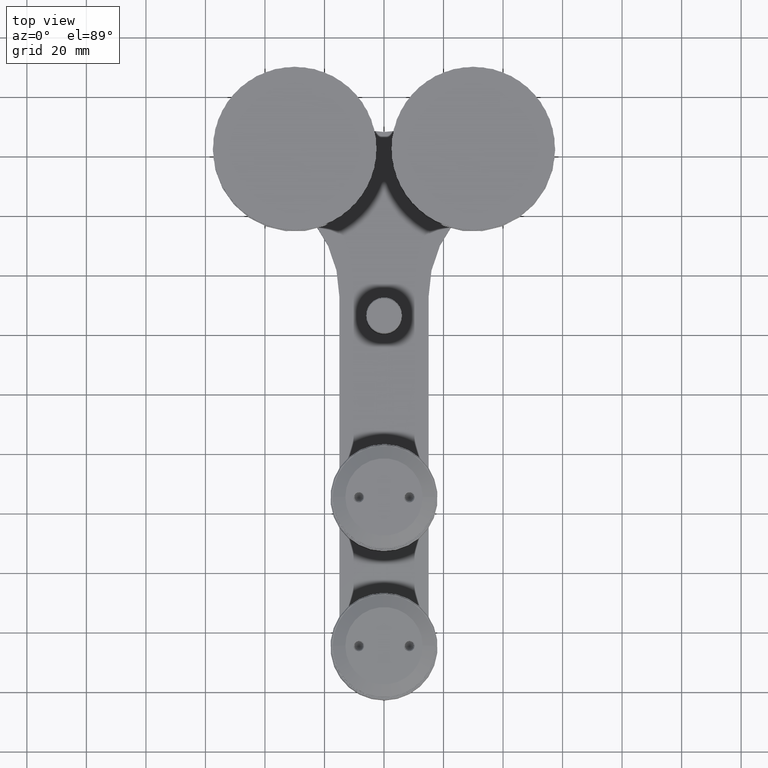
[diagram: clean part render]
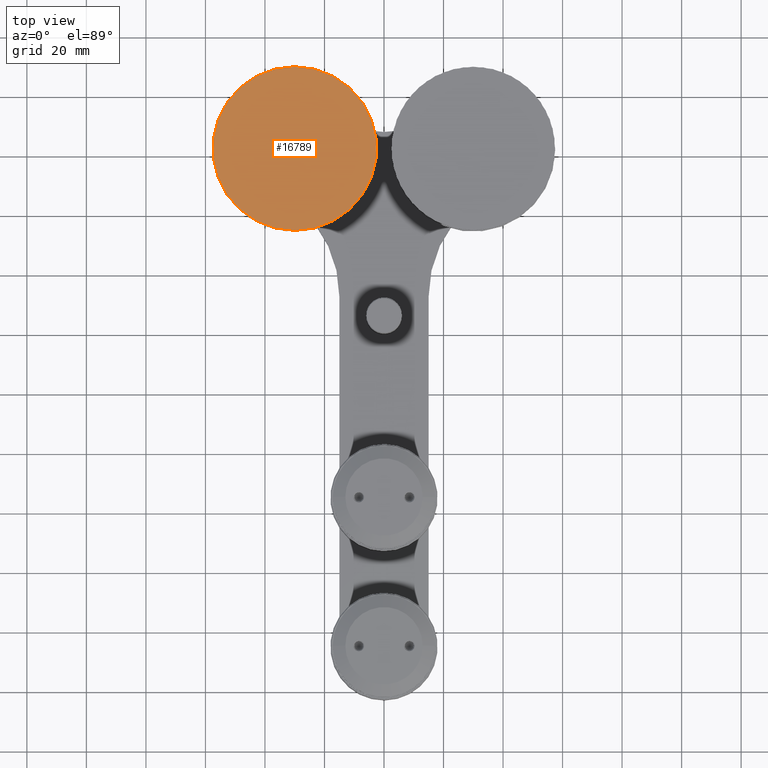
[diagram: same view with one face highlighted and labeled with its STEP entity id]
A machine part, top view. The second image highlights one B-rep face of the part: STEP entity #16789.
In plain terms, the highlighted planar face has unit normal (0, 0, 1).
Its self-contained STEP definition (entity closure, byte-faithful):
#295 = CARTESIAN_POINT ( 'NONE',  ( 0.0000000000000000000, 27.50000000000000000, 21.00000000000000400 ) ) ;
#756 = PLANE ( 'NONE',  #30940 ) ;
#5662 = VERTEX_POINT ( 'NONE', #25490 ) ;
#6009 = AXIS2_PLACEMENT_3D ( 'NONE', #30414, #9157, #44513 ) ;
#8030 = DIRECTION ( 'NONE',  ( -0.0000000000000000000, -4.866999562630479900E-017, -1.000000000000000000 ) ) ;
#9157 = DIRECTION ( 'NONE',  ( -0.0000000000000000000, -4.866999562630479900E-017, -1.000000000000000000 ) ) ;
#10595 = EDGE_LOOP ( 'NONE', ( #42221, #35406 ) ) ;
#16789 = ADVANCED_FACE ( 'NONE', ( #24224 ), #756, .T. ) ;
#17421 = CIRCLE ( 'NONE', #45274, 27.50000000000000000 ) ;
#19802 = VERTEX_POINT ( 'NONE', #27910 ) ;
#22851 = CARTESIAN_POINT ( 'NONE',  ( 0.0000000000000000000, 2.287041808959842600E-031, 21.00000000000000400 ) ) ;
#24224 = FACE_OUTER_BOUND ( 'NONE', #10595, .T. ) ;
#25396 = DIRECTION ( 'NONE',  ( 0.0000000000000000000, -1.000000000000000000, 4.866999562630479900E-017 ) ) ;
#25490 = CARTESIAN_POINT ( 'NONE',  ( 3.367778697655221300E-015, -27.50000000000000000, 21.00000000000000400 ) ) ;
#27910 = CARTESIAN_POINT ( 'NONE',  ( 0.0000000000000000000, 27.50000000000000000, 21.00000000000000400 ) ) ;
#29306 = DIRECTION ( 'NONE',  ( 0.0000000000000000000, 1.000000000000000000, 0.0000000000000000000 ) ) ;
#30414 = CARTESIAN_POINT ( 'NONE',  ( 0.0000000000000000000, 2.287041808959842600E-031, 21.00000000000000400 ) ) ;
#30940 = AXIS2_PLACEMENT_3D ( 'NONE', #295, #36380, #25396 ) ;
#31892 = CIRCLE ( 'NONE', #6009, 27.50000000000000000 ) ;
#33282 = EDGE_CURVE ( 'NONE', #19802, #5662, #17421, .T. ) ;
#34463 = EDGE_CURVE ( 'NONE', #5662, #19802, #31892, .T. ) ;
#35406 = ORIENTED_EDGE ( 'NONE', *, *, #34463, .F. ) ;
#36380 = DIRECTION ( 'NONE',  ( 0.0000000000000000000, 4.866999562630479900E-017, 1.000000000000000000 ) ) ;
#42221 = ORIENTED_EDGE ( 'NONE', *, *, #33282, .F. ) ;
#44513 = DIRECTION ( 'NONE',  ( 0.0000000000000000000, 1.000000000000000000, 0.0000000000000000000 ) ) ;
#45274 = AXIS2_PLACEMENT_3D ( 'NONE', #22851, #8030, #29306 ) ;